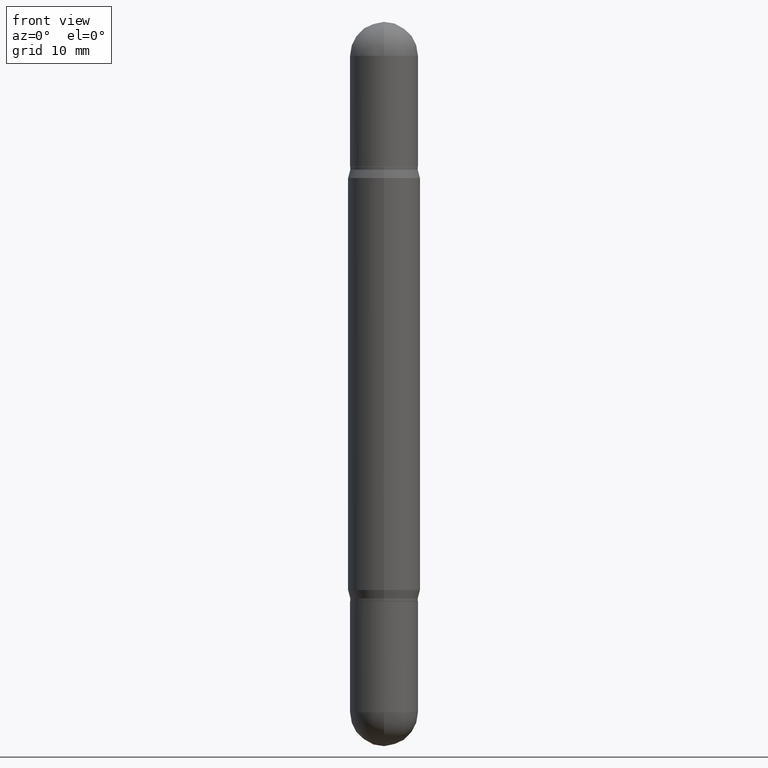
[diagram: clean part render]
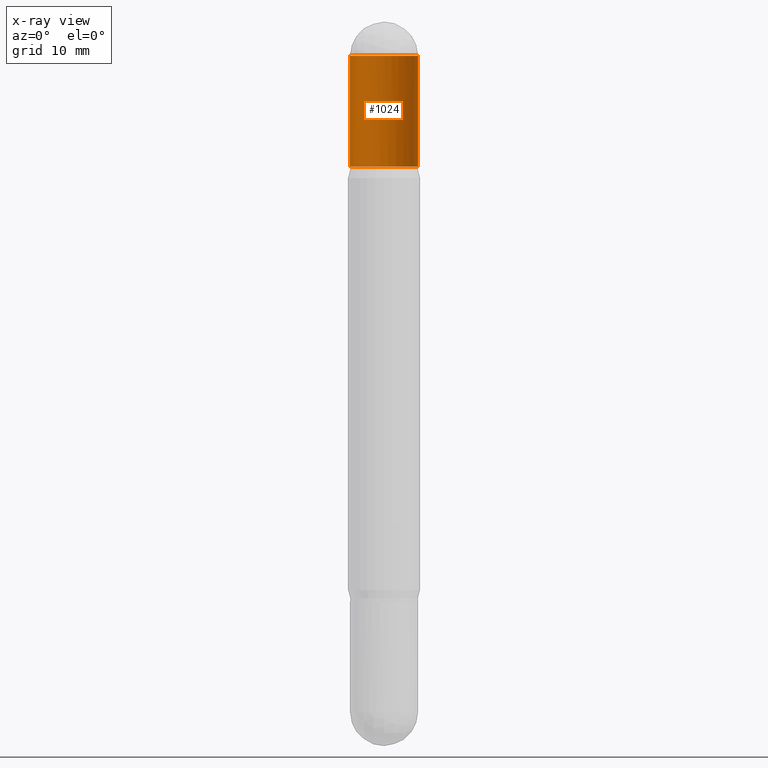
[diagram: x-ray — body ghosted, one internal face saturated and labeled with its STEP entity id]
A machine part, front view, then the same camera in x-ray: the body is ghosted and one INTERNAL B-rep face — a face not visible from any outside direction — is saturated and labeled: STEP entity #1024.
In plain terms, the highlighted cylindrical surface (edge-blend (fillet) strip) has radius 2.9769 mm, axis along (-0, -0, -1).
Its self-contained STEP definition (entity closure, byte-faithful):
#1 = ORIENTED_EDGE ( 'NONE', *, *, #646, .T. ) ;
#2 = CARTESIAN_POINT ( 'NONE',  ( 5.827063071377943309E-29, -4.226444053614477308E-16, -0.1172000000000000541 ) ) ;
#15 = CARTESIAN_POINT ( 'NONE',  ( 8.184032258248885352E-16, 0.1171999999999995684, -0.1172000000000004566 ) ) ;
#23 = ORIENTED_EDGE ( 'NONE', *, *, #1062, .F. ) ;
#35 = DIRECTION ( 'NONE',  ( 1.000000000000000000, -6.982962677686262766E-15, 0.000000000000000000 ) ) ;
#40 = CARTESIAN_POINT ( 'NONE',  ( 5.827063071377943309E-29, -4.226444053614477308E-16, -0.1172000000000000541 ) ) ;
#48 = DIRECTION ( 'NONE',  ( 1.000000000000000000, -6.982962677686266711E-15, 0.000000000000000000 ) ) ;
#49 = ORIENTED_EDGE ( 'NONE', *, *, #531, .F. ) ;
#50 = CARTESIAN_POINT ( 'NONE',  ( 4.890937612370273754E-29, -1.754640823320559999E-15, -0.4999999999999998335 ) ) ;
#117 = DIRECTION ( 'NONE',  ( 1.000000000000000000, -6.982962677686265922E-15, 0.000000000000000000 ) ) ;
#128 = LINE ( 'NONE', #478, #653 ) ;
#156 = CARTESIAN_POINT ( 'NONE',  ( -0.1171999999999999847, -2.845922490021797953E-16, -0.1172000000000000541 ) ) ;
#222 = EDGE_CURVE ( 'NONE', #1114, #1108, #987, .T. ) ;
#237 = ORIENTED_EDGE ( 'NONE', *, *, #222, .F. ) ;
#258 = EDGE_CURVE ( 'NONE', #927, #725, #128, .T. ) ;
#301 = DIRECTION ( 'NONE',  ( -2.445468806185136877E-29, -3.479614466977828648E-15, -1.000000000000000000 ) ) ;
#346 = DIRECTION ( 'NONE',  ( 2.445468806185136597E-29, 3.479614466977828254E-15, 1.000000000000000000 ) ) ;
#371 = CARTESIAN_POINT ( 'NONE',  ( 0.1171999999999999847, -1.907045840165833605E-15, -0.1172000000000000541 ) ) ;
#378 = CARTESIAN_POINT ( 'NONE',  ( 0.1171999999999999986, -2.573044049145390454E-15, -0.4999999999999998335 ) ) ;
#386 = DIRECTION ( 'NONE',  ( 2.445468806185136597E-29, 3.479614466977828254E-15, 1.000000000000000000 ) ) ;
#436 = CIRCLE ( 'NONE', #688, 0.1171999999999999986 ) ;
#478 = CARTESIAN_POINT ( 'NONE',  ( 0.1171999999999999847, -9.532272983101047751E-15, -2.500000000000000000 ) ) ;
#484 = DIRECTION ( 'NONE',  ( -2.445468806185136877E-29, -3.479614466977828648E-15, -1.000000000000000000 ) ) ;
#531 = EDGE_CURVE ( 'NONE', #927, #840, #578, .T. ) ;
#575 = CARTESIAN_POINT ( 'NONE',  ( 0.000000000000000000, -8.713869757276216901E-15, -2.500000000000000000 ) ) ;
#578 = CIRCLE ( 'NONE', #864, 0.1171999999999999847 ) ;
#618 = CIRCLE ( 'NONE', #833, 0.1171999999999999847 ) ;
#646 = EDGE_CURVE ( 'NONE', #725, #1108, #436, .T. ) ;
#650 = DIRECTION ( 'NONE',  ( 2.445468806185136597E-29, 3.479614466977828254E-15, 1.000000000000000000 ) ) ;
#653 = VECTOR ( 'NONE', #484, 39.37007874015748143 ) ;
#671 = ORIENTED_EDGE ( 'NONE', *, *, #258, .T. ) ;
#688 = AXIS2_PLACEMENT_3D ( 'NONE', #50, #650, #117 ) ;
#725 = VERTEX_POINT ( 'NONE', #378 ) ;
#730 = FACE_OUTER_BOUND ( 'NONE', #819, .T. ) ;
#777 = AXIS2_PLACEMENT_3D ( 'NONE', #575, #907, #35 ) ;
#788 = DIRECTION ( 'NONE',  ( 1.000000000000000000, -6.982962677686266711E-15, 0.000000000000000000 ) ) ;
#819 = EDGE_LOOP ( 'NONE', ( #237, #23, #49, #671, #1 ) ) ;
#833 = AXIS2_PLACEMENT_3D ( 'NONE', #40, #386, #48 ) ;
#840 = VERTEX_POINT ( 'NONE', #15 ) ;
#864 = AXIS2_PLACEMENT_3D ( 'NONE', #2, #346, #788 ) ;
#907 = DIRECTION ( 'NONE',  ( -2.445468806185136597E-29, -3.479614466977828254E-15, -1.000000000000000000 ) ) ;
#927 = VERTEX_POINT ( 'NONE', #371 ) ;
#987 = LINE ( 'NONE', #1001, #999 ) ;
#999 = VECTOR ( 'NONE', #301, 39.37007874015748143 ) ;
#1001 = CARTESIAN_POINT ( 'NONE',  ( -0.1171999999999999847, -7.909819391937393990E-15, -2.500000000000000000 ) ) ;
#1024 = ADVANCED_FACE ( 'NONE', ( #730 ), #1098, .T. ) ;
#1039 = CARTESIAN_POINT ( 'NONE',  ( -0.1172000000000000125, -2.845922490021802884E-16, -0.4999999999999998335 ) ) ;
#1062 = EDGE_CURVE ( 'NONE', #840, #1114, #618, .T. ) ;
#1098 = CYLINDRICAL_SURFACE ( 'NONE', #777, 0.1171999999999999847 ) ;
#1108 = VERTEX_POINT ( 'NONE', #1039 ) ;
#1114 = VERTEX_POINT ( 'NONE', #156 ) ;